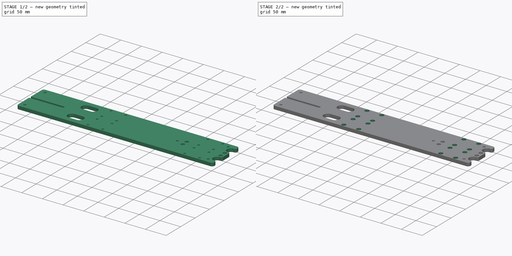
[diagram: build sequence overview — one tinted view per stage of 2, left to right]
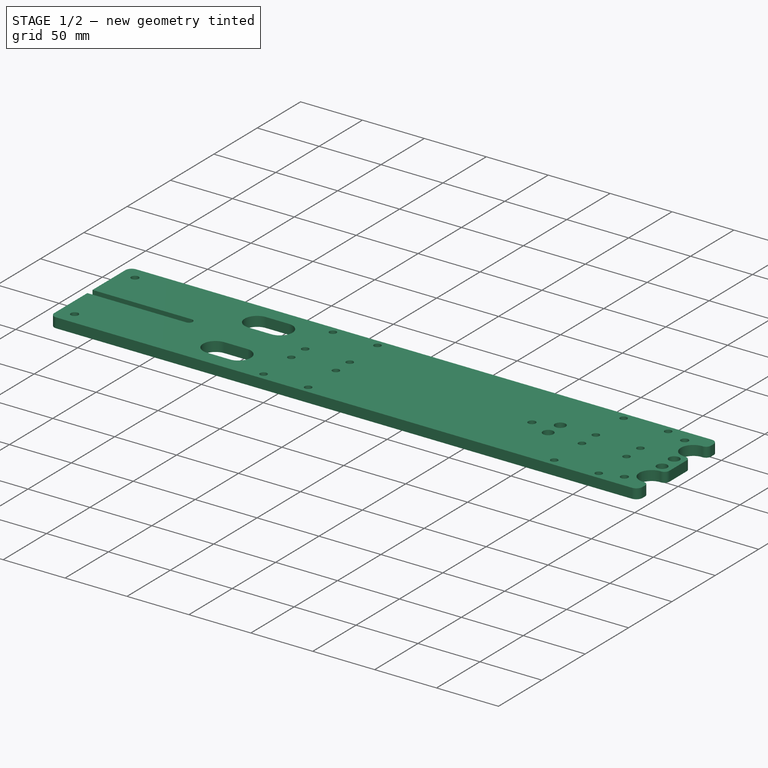
[diagram: stage 1 of 2 — iso view after this stage's code; geometry added in this stage tinted green]
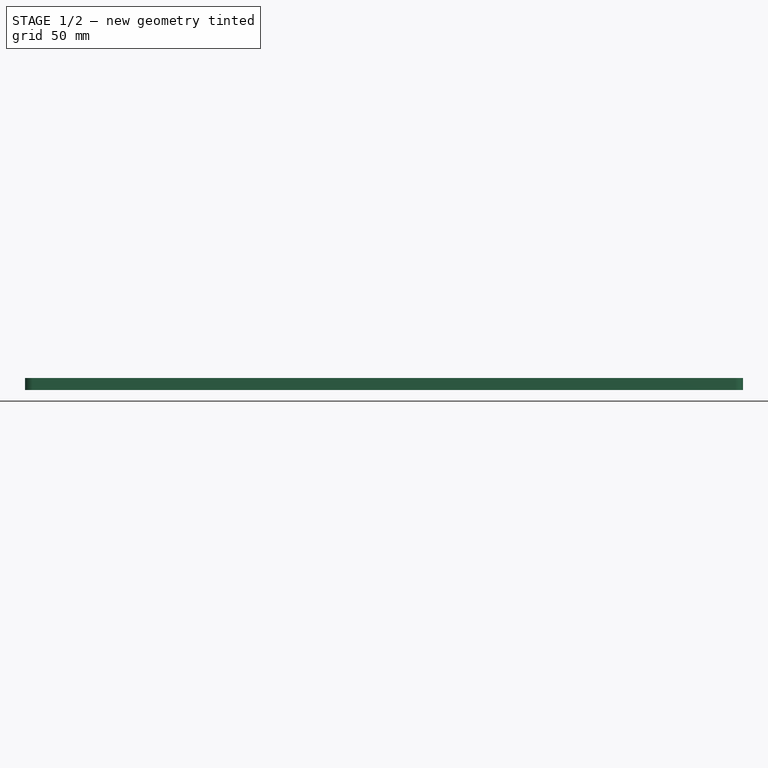
[diagram: stage 1 of 2 — front view after this stage's code; geometry added in this stage tinted green]
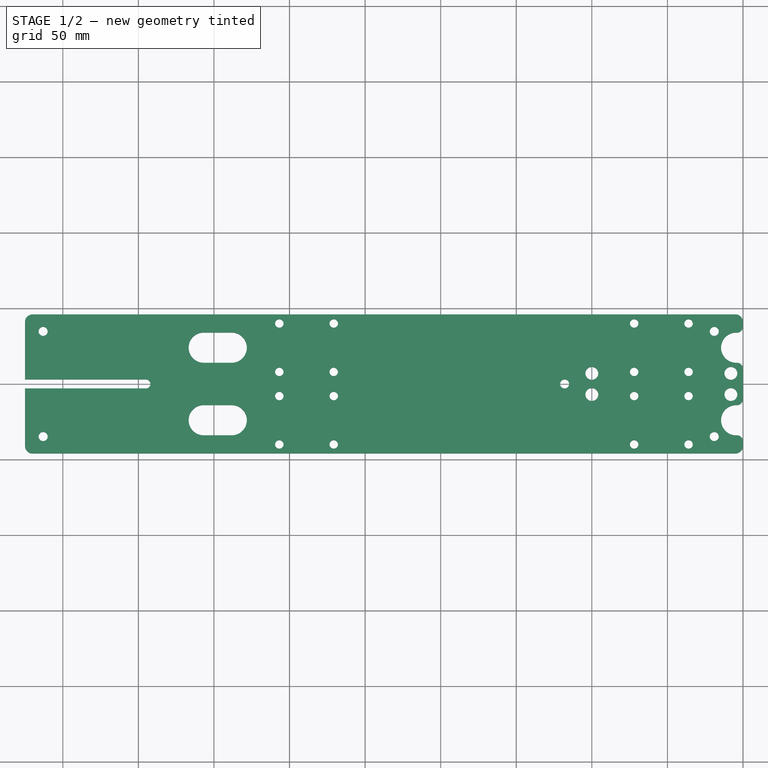
[diagram: stage 1 of 2 — top view after this stage's code; geometry added in this stage tinted green]
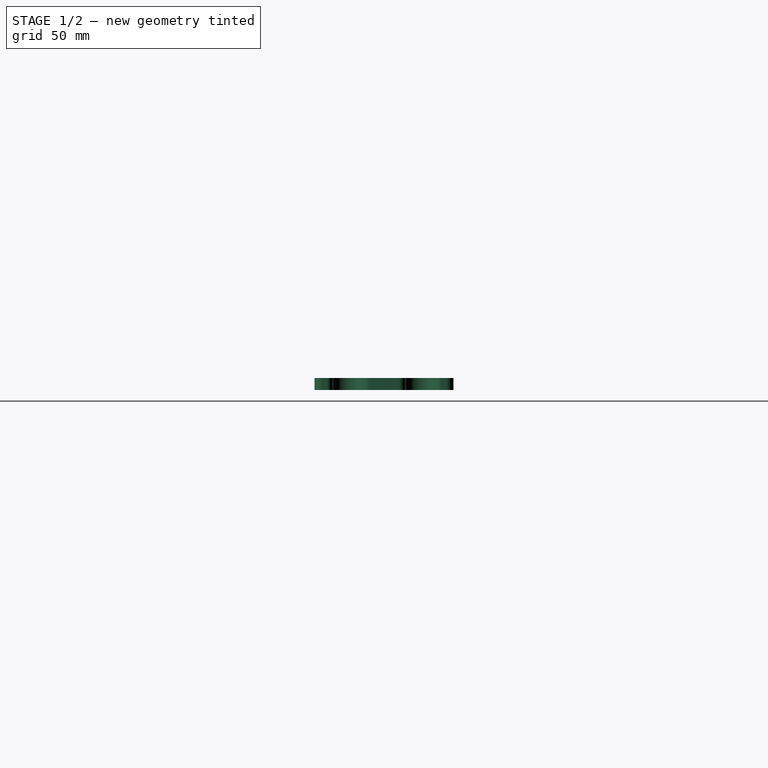
[diagram: stage 1 of 2 — right view after this stage's code; geometry added in this stage tinted green]
FCSTD DOCUMENT  (FreeCAD 0.19R24267 +99 (Git))
Label: V2 Coupling plate sliding assembly
License: All rights reserved
LicenseURL: http://en.wikipedia.org/wiki/All_rights_reserved
objects: Sketcher::SketchObject×2, PartDesign::Pad×1, PartDesign::Pocket×1, PartDesign::Body×1
note: 7 computed .brp shape members not serialized (recipe doc carries the construction recipe); baked Part::Feature solids carry a one-line shape summary decoded from their .brp

FEATURE [Sketcher::SketchObject] Sketch  label="Plate layout"
  FullyConstrained = false
  MapMode = 5
  Support = -> [XY_Plane]
  sketch-geometry (121):
    g0: LineSegment StartX=-5 StartY=46 StartZ=0 EndX=-470 EndY=46 EndZ=0
    g1: LineSegment StartX=-5 StartY=-46 StartZ=0 EndX=-470 EndY=-46 EndZ=0
    g2: ArcOfCircle CenterX=-5 CenterY=41 CenterZ=0 NormalX=0 NormalY=0 NormalZ=1 AngleXU=0 Radius=5 StartAngle=0 EndAngle=1.5708
    g3: ArcOfCircle CenterX=-5 CenterY=-41 CenterZ=0 NormalX=0 NormalY=0 NormalZ=1 AngleXU=0 Radius=5 StartAngle=4.71239 EndAngle=6.28319
    g4: LineSegment StartX=-327.5 StartY=46 StartZ=0 EndX=-327.5 EndY=-46 EndZ=0
    g5: LineSegment StartX=-250 StartY=46 StartZ=0 EndX=-250 EndY=-46 EndZ=0
    g6: LineSegment StartX=-92.75 StartY=46 StartZ=0 EndX=-92.75 EndY=-46 EndZ=0
    g7: LineSegment StartX=-15.25 StartY=46 StartZ=0 EndX=-15.25 EndY=-46 EndZ=0
    g8: LineSegment StartX=-327.5 StartY=0 StartZ=0 EndX=-250 EndY=0 EndZ=0
    g9: LineSegment StartX=-92.75 StartY=0 StartZ=0 EndX=-15.25 EndY=0 EndZ=0
    g10: LineSegment StartX=-306.75 StartY=40 StartZ=0 EndX=-270.75 EndY=40 EndZ=0
    g11: LineSegment StartX=-270.75 StartY=40 StartZ=0 EndX=-270.75 EndY=8 EndZ=0
    g12: LineSegment StartX=-270.75 StartY=8 StartZ=0 EndX=-306.75 EndY=8 EndZ=0
    g13: LineSegment StartX=-306.75 StartY=8 StartZ=0 EndX=-306.75 EndY=40 EndZ=0
    g14: LineSegment StartX=-306.75 StartY=-8 StartZ=0 EndX=-270.75 EndY=-8 EndZ=0
    g15: LineSegment StartX=-270.75 StartY=-8 StartZ=0 EndX=-270.75 EndY=-40 EndZ=0
    g16: LineSegment StartX=-270.75 StartY=-40 StartZ=0 EndX=-306.75 EndY=-40 EndZ=0
    g17: LineSegment StartX=-306.75 StartY=-40 StartZ=0 EndX=-306.75 EndY=-8 EndZ=0
    g18: LineSegment StartX=-72 StartY=40 StartZ=0 EndX=-36 EndY=40 EndZ=0
    g19: LineSegment StartX=-36 StartY=40 StartZ=0 EndX=-36 EndY=8 EndZ=0
    g20: LineSegment StartX=-36 StartY=8 StartZ=0 EndX=-72 EndY=8 EndZ=0
    g21: LineSegment StartX=-72 StartY=8 StartZ=0 EndX=-72 EndY=40 EndZ=0
    g22: LineSegment StartX=-72 StartY=-8 StartZ=0 EndX=-36 EndY=-8 EndZ=0
    g23: LineSegment StartX=-36 StartY=-8 StartZ=0 EndX=-36 EndY=-40 EndZ=0
    g24: LineSegment StartX=-36 StartY=-40 StartZ=0 EndX=-72 EndY=-40 EndZ=0
    g25: LineSegment StartX=-72 StartY=-40 StartZ=0 EndX=-72 EndY=-8 EndZ=0
    g26: LineSegment StartX=-288.75 StartY=8 StartZ=0 EndX=-288.75 EndY=0 EndZ=0
    g27: LineSegment StartX=-288.75 StartY=0 StartZ=0 EndX=-288.75 EndY=-8 EndZ=0
    g28: LineSegment StartX=-54 StartY=8 StartZ=0 EndX=-54 EndY=0 EndZ=0
    g29: LineSegment StartX=-54 StartY=0 StartZ=0 EndX=-54 EndY=-8 EndZ=0
    g30: Circle CenterX=-306.75 CenterY=40 CenterZ=0 NormalX=0 NormalY=0 NormalZ=1 AngleXU=0 Radius=2.8
    g31: Circle CenterX=-270.75 CenterY=40 CenterZ=0 NormalX=0 NormalY=0 NormalZ=1 AngleXU=0 Radius=2.8
    g32: Circle CenterX=-270.75 CenterY=8 CenterZ=0 NormalX=0 NormalY=0 NormalZ=1 AngleXU=0 Radius=2.8
    g33: Circle CenterX=-306.75 CenterY=8 CenterZ=0 NormalX=0 NormalY=0 NormalZ=1 AngleXU=0 Radius=2.8
    g34: Circle CenterX=-306.75 CenterY=-8 CenterZ=0 NormalX=0 NormalY=0 NormalZ=1 AngleXU=0 Radius=2.8
    g35: Circle CenterX=-270.75 CenterY=-8 CenterZ=0 NormalX=0 NormalY=0 NormalZ=1 AngleXU=0 Radius=2.8
    g36: Circle CenterX=-306.75 CenterY=-40 CenterZ=0 NormalX=0 NormalY=0 NormalZ=1 AngleXU=0 Radius=2.8
    g37: Circle CenterX=-270.75 CenterY=-40 CenterZ=0 NormalX=0 NormalY=0 NormalZ=1 AngleXU=0 Radius=2.8
    g38: Circle CenterX=-72 CenterY=-40 CenterZ=0 NormalX=0 NormalY=0 NormalZ=1 AngleXU=0 Radius=2.8
    g39: Circle CenterX=-36 CenterY=-40 CenterZ=0 NormalX=0 NormalY=0 NormalZ=1 AngleXU=0 Radius=2.8
    g40: Circle CenterX=-36 CenterY=-8 CenterZ=0 NormalX=0 NormalY=0 NormalZ=1 AngleXU=0 Radius=2.8
    g41: Circle CenterX=-72 CenterY=-8 CenterZ=0 NormalX=0 NormalY=0 NormalZ=1 AngleXU=0 Radius=2.8
    g42: Circle CenterX=-36 CenterY=8 CenterZ=0 NormalX=0 NormalY=0 NormalZ=1 AngleXU=0 Radius=2.8
    g43: Circle CenterX=-36 CenterY=40 CenterZ=0 NormalX=0 NormalY=0 NormalZ=1 AngleXU=0 Radius=2.8
    g44: Circle CenterX=-72 CenterY=40 CenterZ=0 NormalX=0 NormalY=0 NormalZ=1 AngleXU=0 Radius=2.8
    g45: Circle CenterX=-72 CenterY=8 CenterZ=0 NormalX=0 NormalY=0 NormalZ=1 AngleXU=0 Radius=2.8
    g46: LineSegment StartX=-108 StartY=14 StartZ=0 EndX=0 EndY=14 EndZ=0
    g47: LineSegment StartX=0 StartY=14 StartZ=0 EndX=0 EndY=-14 EndZ=0
    g48: LineSegment StartX=0 StartY=-14 StartZ=0 EndX=-108 EndY=-14 EndZ=0
    g49: LineSegment StartX=-108 StartY=-14 StartZ=0 EndX=-108 EndY=14 EndZ=0
    g50: Circle CenterX=-100 CenterY=7 CenterZ=0 NormalX=0 NormalY=0 NormalZ=1 AngleXU=0 Radius=4.25
    g51: Circle CenterX=-100 CenterY=-7 CenterZ=0 NormalX=0 NormalY=0 NormalZ=1 AngleXU=0 Radius=4.25
    g52: Circle CenterX=-8 CenterY=7 CenterZ=0 NormalX=0 NormalY=0 NormalZ=1 AngleXU=0 Radius=4.25
    g53: Circle CenterX=-8 CenterY=-7 CenterZ=0 NormalX=0 NormalY=0 NormalZ=1 AngleXU=0 Radius=4.25
    g54: LineSegment StartX=-100 StartY=7 StartZ=0 EndX=-100 EndY=-7 EndZ=0
    g55: LineSegment StartX=-8 StartY=7 StartZ=0 EndX=-8 EndY=-7 EndZ=0
    g56: LineSegment StartX=-92.75 StartY=0 StartZ=0 EndX=-100 EndY=0 EndZ=0
    g57: LineSegment StartX=-100 StartY=0 StartZ=0 EndX=-108 EndY=0 EndZ=0
    g58: LineSegment StartX=-15.25 StartY=0 StartZ=0 EndX=-8 EndY=0 EndZ=0
    g59: LineSegment StartX=-8 StartY=0 StartZ=0 EndX=0 EndY=0 EndZ=0
    g60: LineSegment StartX=0 StartY=34.8 StartZ=0 EndX=-475 EndY=34.8 EndZ=0
    g61: LineSegment StartX=0 StartY=-34.8 StartZ=0 EndX=-475 EndY=-34.8 EndZ=0
    g62: GeomPoint X=0 Y=50 Z=0
    g63: GeomPoint X=0 Y=-50 Z=0
    g64: LineSegment StartX=-475 StartY=41 StartZ=0 EndX=-475 EndY=3 EndZ=0
    g65: ArcOfCircle CenterX=-470 CenterY=41 CenterZ=0 NormalX=0 NormalY=0 NormalZ=1 AngleXU=0 Radius=5 StartAngle=1.5708 EndAngle=3.14159
    g66: ArcOfCircle CenterX=-470 CenterY=-41 CenterZ=0 NormalX=0 NormalY=0 NormalZ=1 AngleXU=0 Radius=5 StartAngle=3.14159 EndAngle=4.71239
    g67: Circle CenterX=-19 CenterY=34.8 CenterZ=0 NormalX=0 NormalY=0 NormalZ=1 AngleXU=0 Radius=3
    g68: Circle CenterX=-463 CenterY=34.8 CenterZ=0 NormalX=0 NormalY=0 NormalZ=1 AngleXU=0 Radius=3
    g69: Circle CenterX=-463 CenterY=-34.8 CenterZ=0 NormalX=0 NormalY=0 NormalZ=1 AngleXU=0 Radius=3
    g70: Circle CenterX=-19 CenterY=-34.8 CenterZ=0 NormalX=0 NormalY=0 NormalZ=1 AngleXU=0 Radius=3
    g71: LineSegment StartX=-463 StartY=34.8 StartZ=0 EndX=-463 EndY=-34.8 EndZ=0
    g72: LineSegment StartX=-19 StartY=34.8 StartZ=0 EndX=-19 EndY=-34.8 EndZ=0
    g73: ArcOfCircle CenterX=-356.75 CenterY=24 CenterZ=0 NormalX=0 NormalY=0 NormalZ=1 AngleXU=0 Radius=10 StartAngle=1.5708 EndAngle=4.71239
    g74: ArcOfCircle CenterX=-338.25 CenterY=24 CenterZ=0 NormalX=0 NormalY=0 NormalZ=1 AngleXU=0 Radius=10 StartAngle=4.71239 EndAngle=7.85398
    g75: LineSegment StartX=-356.75 StartY=14 StartZ=0 EndX=-338.25 EndY=14 EndZ=0
    g76: LineSegment StartX=-356.75 StartY=34 StartZ=0 EndX=-338.25 EndY=34 EndZ=0
    g77: ArcOfCircle CenterX=-356.75 CenterY=-24 CenterZ=0 NormalX=0 NormalY=0 NormalZ=1 AngleXU=0 Radius=10 StartAngle=1.5708 EndAngle=4.71239
    g78: ArcOfCircle CenterX=-338.25 CenterY=-24 CenterZ=0 NormalX=0 NormalY=0 NormalZ=1 AngleXU=0 Radius=10 StartAngle=4.71239 EndAngle=7.85398
    g79: LineSegment StartX=-356.75 StartY=-34 StartZ=0 EndX=-338.25 EndY=-34 EndZ=0
    g80: LineSegment StartX=-356.75 StartY=-14 StartZ=0 EndX=-338.25 EndY=-14 EndZ=0
    g81: LineSegment StartX=-338.25 StartY=24 StartZ=0 EndX=-306.75 EndY=24 EndZ=0
    g82: LineSegment StartX=-338.25 StartY=-24 StartZ=0 EndX=-306.75 EndY=-24 EndZ=0
    g83: LineSegment StartX=-65 StartY=14 StartZ=0 EndX=-65 EndY=-14 EndZ=0
    g84: GeomPoint X=-522 Y=-161.906 Z=0
    g85: GeomPoint X=40 Y=-175.71 Z=0
    g86: LineSegment StartX=5.57e-14 StartY=-175.71 StartZ=0 EndX=40 EndY=-175.71 EndZ=0
    g87: LineSegment StartX=0 StartY=41 StartZ=0 EndX=0 EndY=37.9911 EndZ=0
    g88: LineSegment StartX=0 StartY=-41 StartZ=0 EndX=0 EndY=-37.9911 EndZ=0
    g89: ArcOfCircle CenterX=-4 CenterY=37.9911 CenterZ=0 NormalX=0 NormalY=0 NormalZ=1 AngleXU=0 Radius=4 StartAngle=4.67667 EndAngle=6.28319
    g90: ArcOfCircle CenterX=-4 CenterY=-37.9911 CenterZ=0 NormalX=0 NormalY=0 NormalZ=1 AngleXU=0 Radius=4 StartAngle=-9e-16 EndAngle=1.60652
    g91: LineSegment StartX=0 StartY=10.0089 StartZ=0 EndX=0 EndY=-10.0089 EndZ=0
    g92: ArcOfCircle CenterX=-4 CenterY=10.0089 CenterZ=0 NormalX=0 NormalY=0 NormalZ=1 AngleXU=0 Radius=4 StartAngle=0 EndAngle=1.60652
    g93: ArcOfCircle CenterX=-4 CenterY=-10.0089 CenterZ=0 NormalX=0 NormalY=0 NormalZ=1 AngleXU=0 Radius=4 StartAngle=4.67667 EndAngle=6.28319
    g94: LineSegment StartX=-36 StartY=-24 StartZ=0 EndX=-4.5 EndY=-24 EndZ=0
    g95: LineSegment StartX=-4.5 StartY=24 StartZ=0 EndX=-36 EndY=24 EndZ=0
    g96: GeomPoint X=-15.25 Y=24 Z=0
    g97: GeomPoint X=-328.25 Y=24 Z=0
    g98: GeomPoint X=-327.5 Y=24 Z=0
    g99: ArcOfCircle CenterX=-4.5 CenterY=24 CenterZ=0 NormalX=0 NormalY=0 NormalZ=1 AngleXU=0 Radius=10 StartAngle=1.53507 EndAngle=4.74811
    g100: ArcOfCircle CenterX=-4.5 CenterY=-24 CenterZ=0 NormalX=0 NormalY=0 NormalZ=1 AngleXU=0 Radius=10 StartAngle=1.53507 EndAngle=4.74811
    g101: GeomPoint X=-14.5 Y=24 Z=0
    g102: Circle CenterX=-19 CenterY=-34.8 CenterZ=0 NormalX=0 NormalY=0 NormalZ=1 AngleXU=0 Radius=7.5
    g103: LineSegment StartX=-22 StartY=34.8 StartZ=0 EndX=-16 EndY=34.8 EndZ=0
    g104: LineSegment StartX=-19 StartY=31.8 StartZ=0 EndX=-19 EndY=37.8 EndZ=0
    g105: LineSegment StartX=-19 StartY=-37.8 StartZ=0 EndX=-19 EndY=-31.8 EndZ=0
    g106: LineSegment StartX=-22 StartY=-34.8 StartZ=0 EndX=-16 EndY=-34.8 EndZ=0
    g107: LineSegment StartX=-466 StartY=-34.8 StartZ=0 EndX=-460 EndY=-34.8 EndZ=0
    g108: LineSegment StartX=-463 StartY=-31.8 StartZ=0 EndX=-463 EndY=-37.8 EndZ=0
    g109: LineSegment StartX=-463 StartY=37.8 StartZ=0 EndX=-463 EndY=31.8 EndZ=0
    g110: LineSegment StartX=-466 StartY=34.8 StartZ=0 EndX=-460 EndY=34.8 EndZ=0
    g111: Circle CenterX=-118 CenterY=0 CenterZ=0 NormalX=0 NormalY=0 NormalZ=1 AngleXU=0 Radius=3
    g112: LineSegment StartX=-118 StartY=3 StartZ=0 EndX=-118 EndY=-3 EndZ=0
    g113: LineSegment StartX=-121 StartY=0 StartZ=0 EndX=-115 EndY=0 EndZ=0
    g114: ArcOfCircle CenterX=-395 CenterY=0 CenterZ=0 NormalX=0 NormalY=0 NormalZ=1 AngleXU=0 Radius=3 StartAngle=4.71239 EndAngle=7.85398
    g115: LineSegment StartX=-395 StartY=-3 StartZ=0 EndX=-475 EndY=-3 EndZ=0
    g116: LineSegment StartX=-395 StartY=3 StartZ=0 EndX=-475 EndY=3 EndZ=0
    g117: LineSegment StartX=-475 StartY=-3 StartZ=0 EndX=-475 EndY=-41 EndZ=0
    g118: LineSegment StartX=-475 StartY=3 StartZ=0 EndX=-475 EndY=-3 EndZ=0
    g119: GeomPoint X=-453 Y=0 Z=0
    g120: GeomPoint X=-365.5 Y=0 Z=0
  constraints (325):
    c: Horizontal(g0)
    c: Horizontal(g1)
    c: Tangent(g0,g2) = -1.5708
    c: Tangent(g1,g3) = 1.5708
    c: DistanceY(g1,g0) = 92
    c: PointOnObject(g4,g0)
    c: PointOnObject(g4,g1)
    c: Vertical(g4)
    c: PointOnObject(g5,g0)
    c: Vertical(g5)
    c: PointOnObject(g6,g0)
    c: PointOnObject(g6,g1)
    c: Vertical(g6)
    c: PointOnObject(g7,g0)
    c: PointOnObject(g7,g1)
    c: Vertical(g7)
    c: PointOnObject(g8,g4)
    c: PointOnObject(g8,g5)
    c: Horizontal(g8)
    c: PointOnObject(g9,g6)
    c: PointOnObject(g9,g7)
    c: PointOnObject(g8,g-1)
    c: Tangent(g9,g-1) = -1.5708
    c: Equal(g8,g9)
    c: DistanceX(g4,g5) = 77.5
    c: Coincident(g10,g11)
    c: Coincident(g11,g12)
    c: Coincident(g12,g13)
    c: Coincident(g13,g10)
    c: Horizontal(g10)
    c: Horizontal(g12)
    c: Vertical(g11)
    c: Vertical(g13)
    c: Coincident(g14,g15)
    c: Coincident(g15,g16)
    c: Coincident(g16,g17)
    c: Coincident(g17,g14)
    c: Horizontal(g14)
    c: Horizontal(g16)
    c: Vertical(g15)
    c: Vertical(g17)
    c: Coincident(g18,g19)
    c: Coincident(g19,g20)
    c: Coincident(g20,g21)
    c: Coincident(g21,g18)
    c: Horizontal(g18)
    c: Horizontal(g20)
    c: Vertical(g19)
    c: Vertical(g21)
    c: Coincident(g22,g23)
    c: Coincident(g23,g24)
    c: Coincident(g24,g25)
    c: Coincident(g25,g22)
    c: Horizontal(g22)
    c: Horizontal(g24)
    c: Vertical(g23)
    c: Vertical(g25)
    c: Equal(g10,g18)
    c: Equal(g18,g22)
    c: Equal(g22,g14)
    c: Equal(g13,g17)
    c: Equal(g17,g25)
    c: Equal(g25,g21)
    c: DistanceX(g10,g10) = 36
    c: DistanceY(g13,g13) = 32
    c: Vertical(g26)
    c: Coincident(g27,g26)
    c: Vertical(g27)
    c: Coincident(g29,g28)
    c: Equal(g26,g28)
    c: Equal(g29,g27)
    c: Equal(g27,g26)
    c: Vertical(g28)
    c: Vertical(g29)
    c: Symmetric(g12,g11,g26)
    c: Symmetric(g14,g14,g27)
    c: Symmetric(g20,g19,g28)
    c: Symmetric(g22,g22,g29)
    c: Symmetric(g8,g8,g26)
    c: Symmetric(g9,g9,g28)
    c: Coincident(g30,g10)
    c: Coincident(g31,g10)
    c: Coincident(g32,g11)
    c: Coincident(g33,g12)
    c: Coincident(g34,g14)
    c: Coincident(g35,g14)
    c: Coincident(g36,g16)
    c: Coincident(g37,g15)
    c: Coincident(g38,g24)
    c: Coincident(g39,g23)
    c: Coincident(g40,g22)
    c: Coincident(g41,g22)
    c: Coincident(g42,g19)
    c: Coincident(g43,g18)
    c: Coincident(g44,g18)
    c: Coincident(g45,g20)
    c: Equal(g30,g31)
    c: Equal(g31,g32)
    c: Equal(g32,g33)
    c: Equal(g33,g34)
    c: Equal(g34,g35)
    c: Equal(g35,g37)
    c: Equal(g37,g36)
    c: Equal(g36,g44)
    c: Equal(g44,g43)
    c: Equal(g43,g42)
    c: Equal(g42,g45)
    c: Equal(g45,g41)
    c: Equal(g41,g40)
    c: Equal(g40,g39)
    c: Equal(g39,g38)
    c: Coincident(g46,g47)
    c: Coincident(g47,g48)
    c: Coincident(g48,g49)
    c: Coincident(g49,g46)
    c: Horizontal(g46)
    c: Horizontal(g48)
    c: Vertical(g49)
    c: Symmetric(g46,g47,g-1)
    c: DistanceY(g49,g49) = 28
    c: Coincident(g54,g50)
    c: Coincident(g54,g51)
    c: Coincident(g55,g52)
    c: Coincident(g55,g53)
    c: Symmetric(g51,g50,g-1)
    c: Symmetric(g53,g52,g-1)
    c: Equal(g50,g52)
    c: Equal(g52,g53)
    c: Equal(g53,g51)
    c: DistanceY(g54,g54) = 14
    c: Equal(g54,g55)
    c: DistanceX(g48,g47) = 108
    c: Coincident(g56,g9)
    c: Horizontal(g56)
    c: Coincident(g57,g56)
    c: PointOnObject(g57,g49)
    c: Horizontal(g57)
    c: PointOnObject(g56,g54)
    c: Coincident(g58,g9)
    c: Horizontal(g58)
    c: Coincident(g59,g58)
    c: PointOnObject(g58,g55)
    c: Equal(g58,g56)
    c: Equal(g59,g57)
    c: PointOnObject(g59,g47)
    c: Coincident(g59,g-1)
    c: PointOnObject(g5,g1)
    c: PointOnObject(g60,g-2)
    c: Horizontal(g60)
    c: Horizontal(g61)
    c: Symmetric(g61,g60,g-1)
    c: PointOnObject(g62,g-2)
    c: Symmetric(g62,g63,g-1)
    c: DistanceY(g63,g62) = 100
    c: DistanceY(g63,g61) = 15.2
    c: Tangent(g0,g65) = -1.5708
    c: Tangent(g64,g65) = -1.5708
    c: Tangent(g1,g66) = 1.5708
    c: Equal(g65,g2)
    c: Equal(g66,g3)
    c: Vertical(g64)
    c: Radius(g65) = 5
    c: PointOnObject(g61,g64)
    c: PointOnObject(g60,g64)
    c: Equal(g65,g66)
    c: PointOnObject(g67,g60)
    c: PointOnObject(g68,g60)
    c: PointOnObject(g69,g61)
    c: PointOnObject(g70,g61)
    c: Equal(g68,g69)
    c: Equal(g69,g70)
    c: Equal(g70,g67)
    c: Radius(g68) = 3
    c: Coincident(g71,g68)
    c: Coincident(g71,g69)
    c: Vertical(g71)
    c: Coincident(g72,g67)
    c: Coincident(g72,g70)
    c: Vertical(g72)
    c: DistanceX(g61,g69) = 12
    c: Tangent(g73,g76) = 1.5708
    c: Tangent(g73,g75) = -1.5708
    c: Tangent(g75,g74) = -1.5708
    c: Tangent(g76,g74) = 1.5708
    c: Horizontal(g75)
    c: Equal(g73,g74)
    c: Tangent(g77,g80) = 1.5708
    c: Tangent(g77,g79) = -1.5708
    c: Tangent(g79,g78) = -1.5708
    c: Tangent(g80,g78) = 1.5708
    c: Horizontal(g79)
    c: Equal(g77,g78)
    c: Equal(g73,g77)
    c: Radius(g73) = 10
    c: Equal(g76,g80)
    c: DistanceX(g76,g76) = 18.5
    c: Coincident(g81,g74)
    c: Coincident(g82,g78)
    c: Horizontal(g81)
    c: Horizontal(g82)
    c: Symmetric(g33,g30,g81)
    c: Symmetric(g36,g34,g82)
    c: Equal(g82,g81)
    c: DistanceX(g81,g81) = 31.5
    c: PointOnObject(g83,g46)
    c: PointOnObject(g83,g48)
    c: Vertical(g83)
    c: DistanceX(g83,g47) = 65
    c: DistanceX(g84,g83) = 457
    c: Coincident(g86,g85)
    c: Horizontal(g86)
    c: DistanceX(g86,g86) = 40
    c: Vertical(g87)
    c: Vertical(g88)
    c: PointOnObject(g61,g88)
    c: Tangent(g87,g89) = 1.5708
    c: Tangent(g88,g90) = -1.5708
    c: Vertical(g91)
    c: Equal(g90,g89)
    c: Radius(g89) = 4
    c: PointOnObject(g-1,g91)
    c: Tangent(g87,g2) = 1.5708
    c: Tangent(g88,g3) = -1.5708
    c: Symmetric(g2,g3,g-1)
    c: Tangent(g91,g92) = 1.5708
    c: Tangent(g91,g93) = 1.5708
    c: Equal(g92,g89)
    c: Equal(g93,g89)
    c: Horizontal(g94)
    c: Horizontal(g95)
    c: Symmetric(g43,g42,g95)
    c: Symmetric(g40,g39,g94)
    c: PointOnObject(g96,g7)
    c: PointOnObject(g96,g95)
    c: PointOnObject(g97,g81)
    c: PointOnObject(g98,g4)
    c: PointOnObject(g98,g81)
    c: PointOnObject(g97,g74)
    c: DistanceX(g97,g98) = 0.75
    c: DistanceX(g5,g-1) = 250
    c: DistanceX(g64,g-1) = 475
    c: DistanceX(g83,g86) = 65
    c: Coincident(g99,g95)
    c: Tangent(g99,g89) = 1.5708
    c: Tangent(g99,g92) = 1.5708
    c: Coincident(g100,g94)
    c: Tangent(g100,g90) = 1.5708
    c: Tangent(g100,g93) = 1.5708
    c: Equal(g99,g100)
    c: Equal(g100,g73)
    c: PointOnObject(g101,g99)
    c: PointOnObject(g101,g95)
    c: DistanceX(g96,g101) = 0.75
    c: Equal(g94,g95)
    c: Coincident(g102,g70)
    c: Radius(g102) = 7.5
    c: DistanceX(g70,g-1) = 19
    c: DistanceX(g84,g70) = 503
    c: DistanceX(g69,g85) = 503
    c: DistanceY(g78,g74) = 48
    c: PointOnObject(g103,g67)
    c: PointOnObject(g103,g67)
    c: Horizontal(g103)
    c: PointOnObject(g104,g67)
    c: PointOnObject(g104,g67)
    c: Vertical(g104)
    c: PointOnObject(g105,g70)
    c: PointOnObject(g105,g70)
    c: Vertical(g105)
    c: PointOnObject(g106,g70)
    c: PointOnObject(g106,g70)
    c: Horizontal(g106)
    c: PointOnObject(g107,g69)
    c: PointOnObject(g107,g69)
    c: Horizontal(g107)
    c: PointOnObject(g108,g69)
    c: PointOnObject(g108,g69)
    c: Vertical(g108)
    c: PointOnObject(g109,g68)
    c: PointOnObject(g109,g68)
    c: Vertical(g109)
    c: PointOnObject(g110,g68)
    c: PointOnObject(g110,g68)
    c: Horizontal(g110)
    c: PointOnObject(g68,g109)
    c: PointOnObject(g68,g110)
    c: PointOnObject(g69,g107)
    c: PointOnObject(g69,g108)
    c: PointOnObject(g70,g105)
    c: PointOnObject(g70,g106)
    c: PointOnObject(g67,g104)
    c: PointOnObject(g67,g103)
    c: PointOnObject(g111,g-1)
    c: DistanceX(g111,g57) = 10
    c: PointOnObject(g112,g111)
    c: PointOnObject(g112,g111)
    c: Vertical(g112)
    c: PointOnObject(g113,g111)
    c: PointOnObject(g113,g111)
    c: Horizontal(g113)
    c: PointOnObject(g111,g113)
    c: PointOnObject(g111,g112)
    c: PointOnObject(g114,g-1)
    c: Horizontal(g115)
    c: Horizontal(g116)
    c: Coincident(g64,g116)
    c: Coincident(g117,g115)
    c: Tangent(g64,g117)
    c: Coincident(g118,g64)
    c: Coincident(g118,g115)
    c: DistanceX(g116,g116) = 80
    c: Tangent(g115,g114) = 1.5708
    c: Tangent(g116,g114) = -1.5708
    c: Tangent(g117,g66) = -1.5708
    c: PointOnObject(g119,g-1)
    c: DistanceX(g119,g111) = 335
    c: PointOnObject(g120,g-1)
    c: DistanceX(g119,g120) = 87.5
    c: DistanceX(g120,g83) = 300.5
    c: Diameter(g50) = 8.5
    c: DistanceX(g51,g53) = 92
    c: Diameter(g111) = 6
    c: Diameter(g31) = 5.6
    c: Equal(g114,g111)
    c: DistanceX(g48,g83) = 43
FEATURE [PartDesign::Pad] Pad  label="Plate thickness"
  Direction = (1,1,1)
  Length = 8
  Length2 = 100
  Profile = -> Sketch
  Reversed = true
  Type = 0
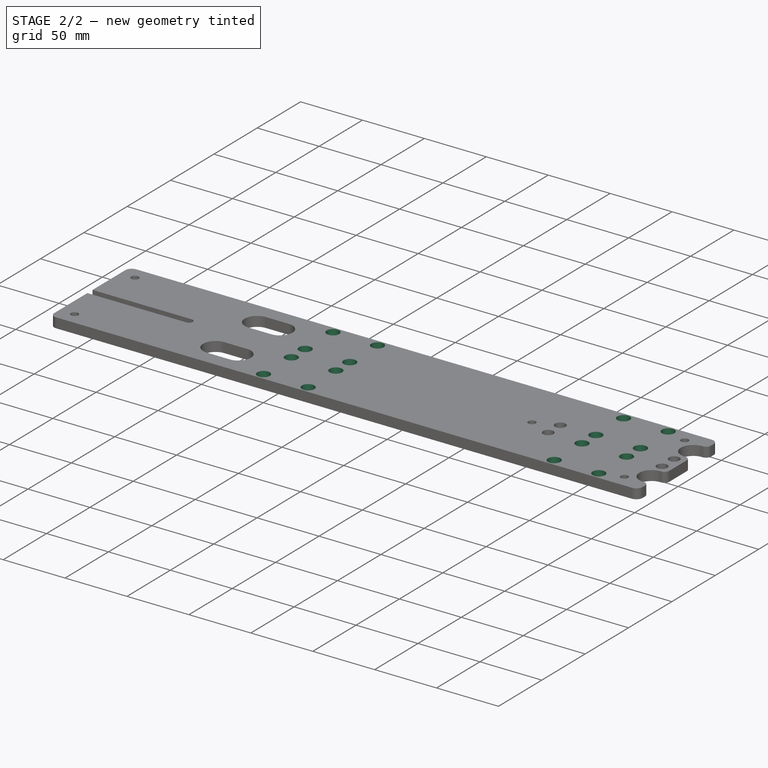
[diagram: stage 2 of 2 — iso view after this stage's code; geometry added in this stage tinted green]
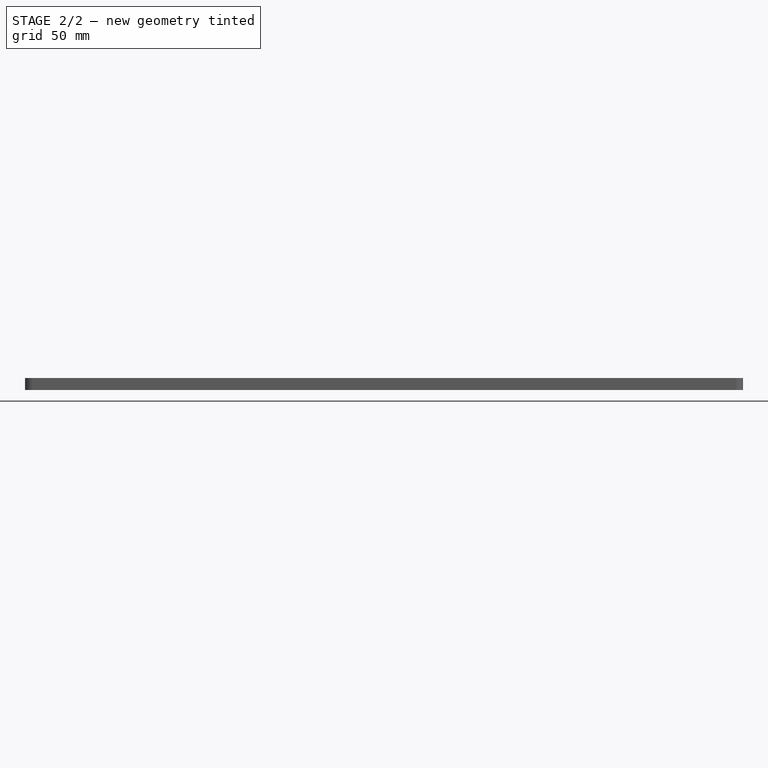
[diagram: stage 2 of 2 — front view after this stage's code; geometry added in this stage tinted green]
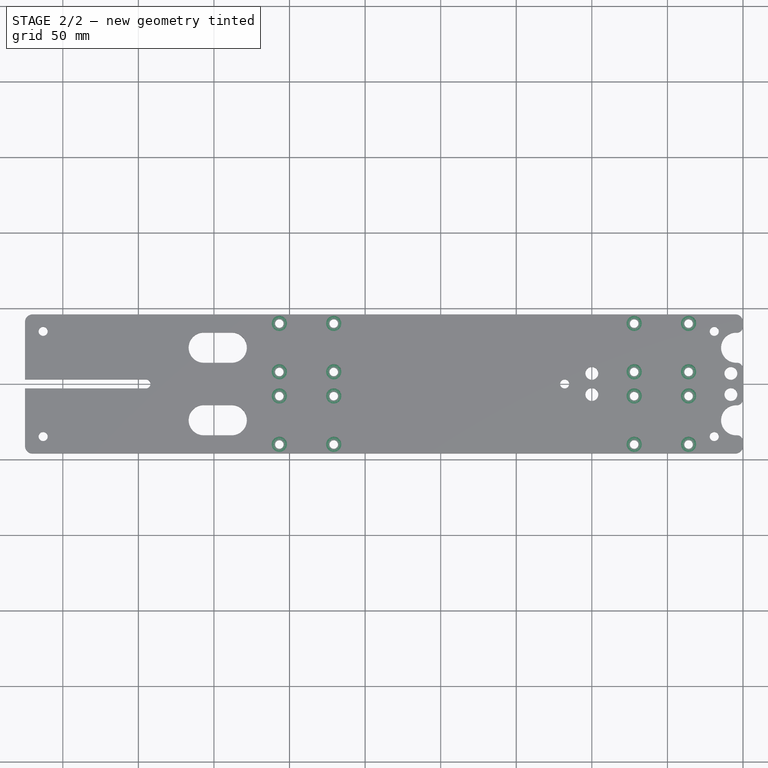
[diagram: stage 2 of 2 — top view after this stage's code; geometry added in this stage tinted green]
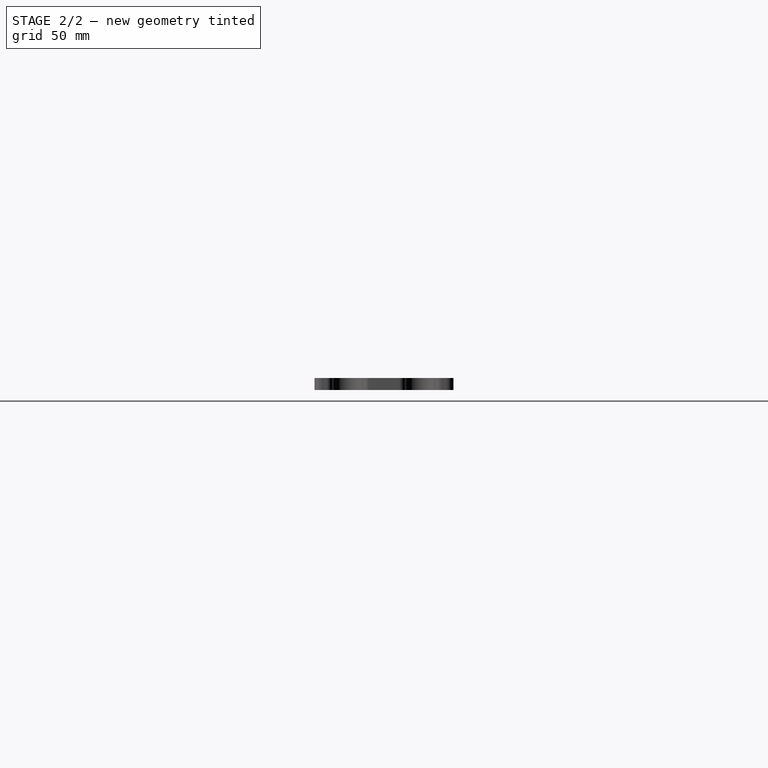
[diagram: stage 2 of 2 — right view after this stage's code; geometry added in this stage tinted green]
FEATURE [Sketcher::SketchObject] Sketch001  label="Holes to counterbore"
  ExternalGeometry = -> [Pad]
  FullyConstrained = true
  MapMode = 5
  Support = -> [XY_Plane]
  sketch-geometry (16):
    g0: Circle CenterX=-306.75 CenterY=-40 CenterZ=0 NormalX=0 NormalY=0 NormalZ=1 AngleXU=0 Radius=5
    g1: Circle CenterX=-36 CenterY=8 CenterZ=0 NormalX=0 NormalY=0 NormalZ=1 AngleXU=0 Radius=5
    g2: Circle CenterX=-36 CenterY=40 CenterZ=0 NormalX=0 NormalY=0 NormalZ=1 AngleXU=0 Radius=5
    g3: Circle CenterX=-36 CenterY=-40 CenterZ=0 NormalX=0 NormalY=0 NormalZ=1 AngleXU=0 Radius=5
    g4: Circle CenterX=-270.75 CenterY=-8 CenterZ=0 NormalX=0 NormalY=0 NormalZ=1 AngleXU=0 Radius=5
    g5: Circle CenterX=-72 CenterY=-40 CenterZ=0 NormalX=0 NormalY=0 NormalZ=1 AngleXU=0 Radius=5
    g6: Circle CenterX=-306.75 CenterY=40 CenterZ=0 NormalX=0 NormalY=0 NormalZ=1 AngleXU=0 Radius=5
    g7: Circle CenterX=-72 CenterY=-8 CenterZ=0 NormalX=0 NormalY=0 NormalZ=1 AngleXU=0 Radius=5
    g8: Circle CenterX=-270.75 CenterY=40 CenterZ=0 NormalX=0 NormalY=0 NormalZ=1 AngleXU=0 Radius=5
    g9: Circle CenterX=-270.75 CenterY=8 CenterZ=0 NormalX=0 NormalY=0 NormalZ=1 AngleXU=0 Radius=5
    g10: Circle CenterX=-72 CenterY=8 CenterZ=0 NormalX=0 NormalY=0 NormalZ=1 AngleXU=0 Radius=5
    g11: Circle CenterX=-270.75 CenterY=-40 CenterZ=0 NormalX=0 NormalY=0 NormalZ=1 AngleXU=0 Radius=5
    g12: Circle CenterX=-72 CenterY=40 CenterZ=0 NormalX=0 NormalY=0 NormalZ=1 AngleXU=0 Radius=5
    g13: Circle CenterX=-306.75 CenterY=-8 CenterZ=0 NormalX=0 NormalY=0 NormalZ=1 AngleXU=0 Radius=5
    g14: Circle CenterX=-36 CenterY=-8 CenterZ=0 NormalX=0 NormalY=0 NormalZ=1 AngleXU=0 Radius=5
    g15: Circle CenterX=-306.75 CenterY=8 CenterZ=0 NormalX=0 NormalY=0 NormalZ=1 AngleXU=0 Radius=5
  constraints (32):
    c: Equal(g5,g3)
    c: Equal(g3,g4)
    c: Equal(g1,g2)
    c: Equal(g10,g9)
    c: Radius(g5) = 5
    c: Equal(g7,g5)
    c: Equal(g10,g5)
    c: Equal(g11,g8)
    c: Equal(g8,g12)
    c: Equal(g12,g5)
    c: Equal(g14,g13)
    c: Equal(g13,g2)
    c: Equal(g1,g5)
    c: Equal(g6,g5)
    c: Equal(g0,g5)
    c: Equal(g15,g10)
    c: Coincident(g6,g-5)
    c: Coincident(g13,g-3)
    c: Coincident(g11,g-12)
    c: Coincident(g8,g-7)
    c: Coincident(g4,g-9)
    c: Coincident(g9,g-10)
    c: Coincident(g7,g-13)
    c: Coincident(g-8,g10)
    c: Coincident(g1,g-4)
    c: Coincident(g14,g-16)
    c: Coincident(g0,g-11)
    c: Coincident(g15,g-6)
    c: Coincident(g2,g-14)
    c: Coincident(g12,g-15)
    c: Coincident(g3,g-17)
    c: Coincident(g5,g-18)
FEATURE [PartDesign::Pocket] Pocket  label="Counterbore"
  BaseFeature = -> Pad
  Length = 5.5
  Length2 = 100
  Profile = -> Sketch001
  Type = 0
FEATURE [PartDesign::Body] Body
  Group = -> [Sketch,Pad,Sketch001,Pocket]
  Origin = -> Origin
  Tip = -> Pocket
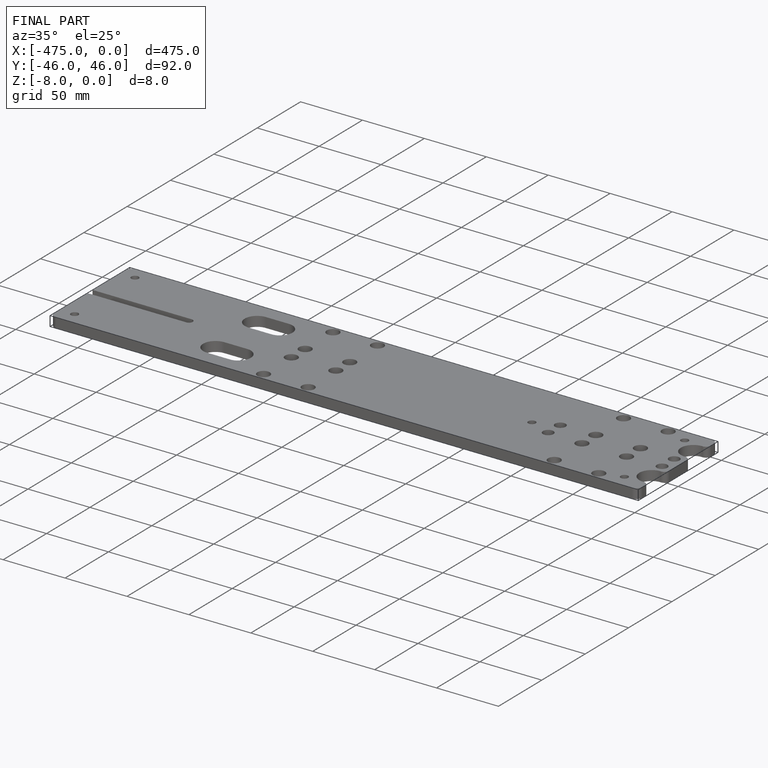
[diagram: finished part — iso view with bounding-box wireframe]
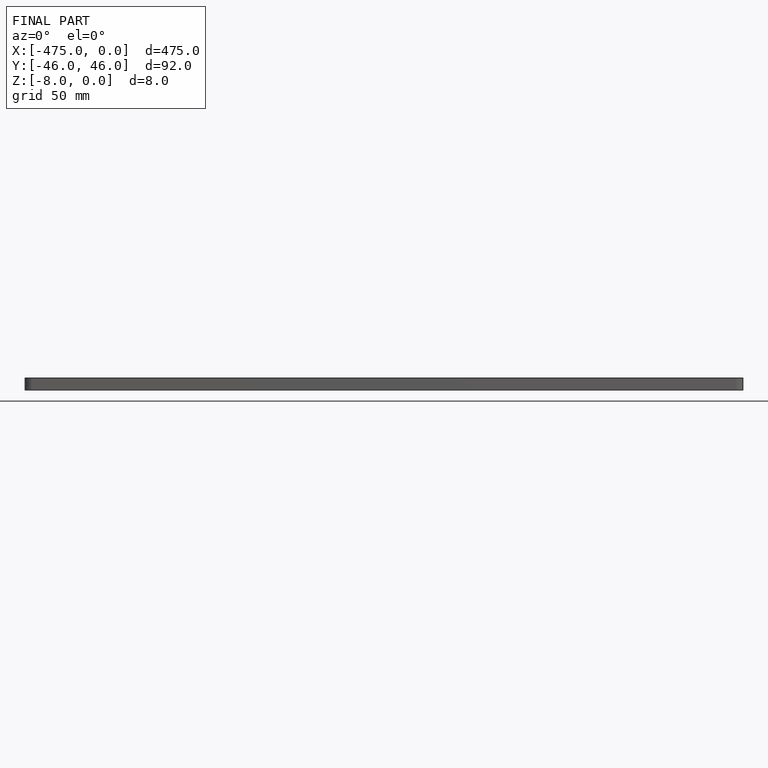
[diagram: finished part — front view with bounding-box wireframe]
